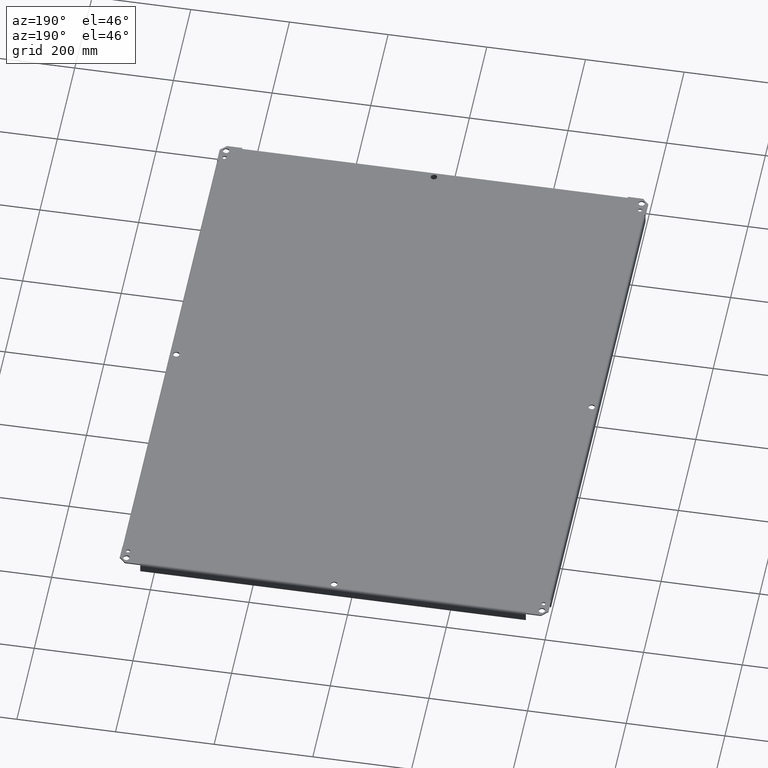
[diagram: clean part render]
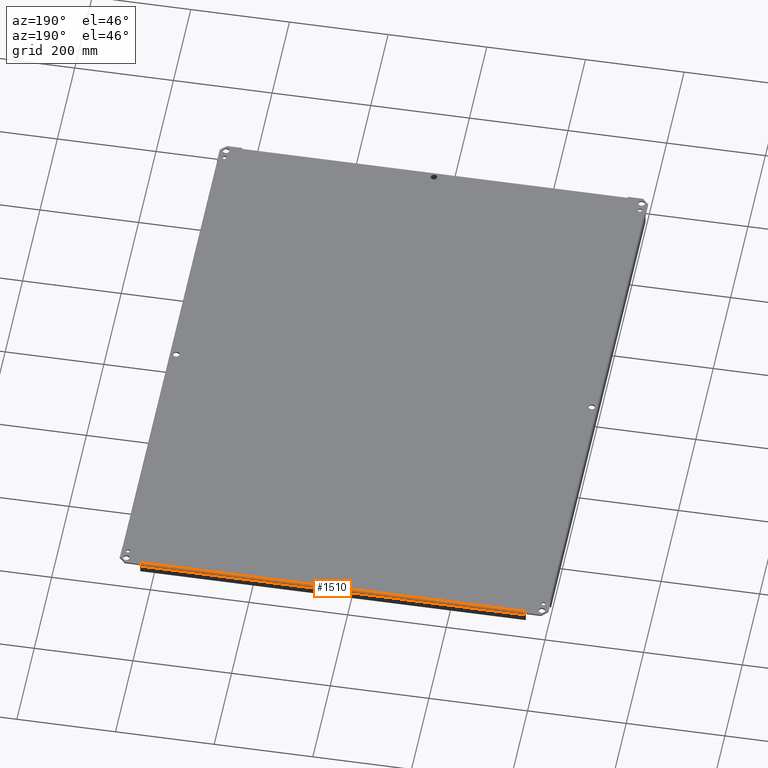
[diagram: same view with one face highlighted and labeled with its STEP entity id]
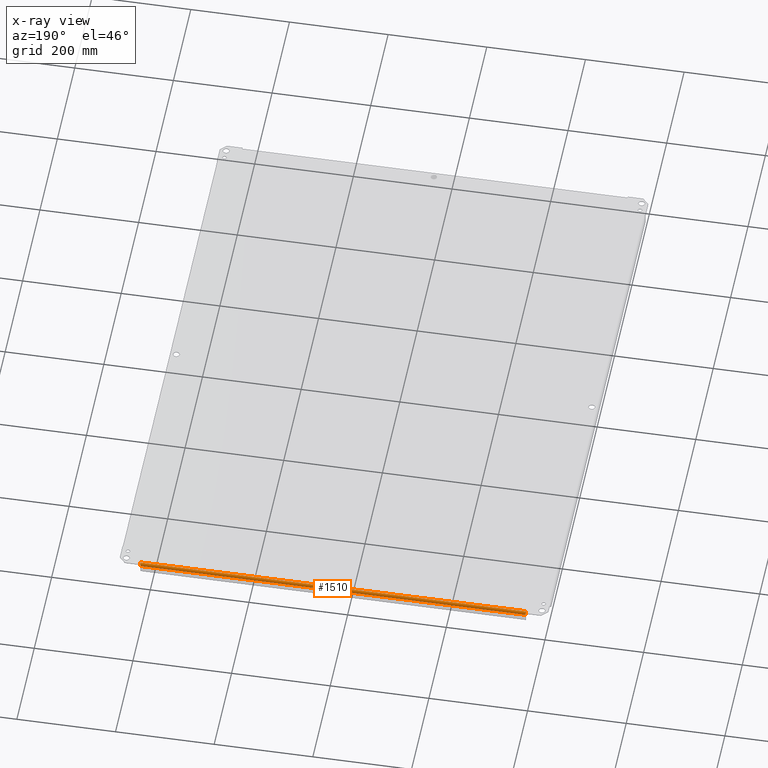
[diagram: x-ray of the same camera — body ghosted, the highlighted face saturated]
A machine part, auxiliary view. The second image highlights one B-rep face of the part: STEP entity #1510.
The next image is the same camera in x-ray: the body ghosted, the highlighted face saturated — about 0% of this face is hidden behind the body in this view.
In plain terms, the highlighted cylindrical surface (edge-blend (fillet) strip) has radius 4.7625 mm, axis along (-1, -0, 0).
Its self-contained STEP definition (entity closure, byte-faithful):
#1075=CARTESIAN_POINT('',(32.481999999999992,46.012500000000017,0.09375));
#1076=VERTEX_POINT('',#1075);
#1083=CARTESIAN_POINT('',(1.717999999999987,46.01250000000001,0.09375));
#1084=VERTEX_POINT('',#1083);
#1085=CARTESIAN_POINT('',(32.481999999999992,46.012500000000017,0.09375));
#1086=DIRECTION('',(-1.0,0.0,0.0));
#1087=VECTOR('',#1086,30.764000000000006);
#1088=LINE('',#1085,#1087);
#1089=EDGE_CURVE('',#1076,#1084,#1088,.T.);
#1324=CARTESIAN_POINT('',(32.481999999999992,46.200000000000003,-0.093750000000444));
#1325=VERTEX_POINT('',#1324);
#1326=CARTESIAN_POINT('',(1.717999999999989,46.199999999999996,-0.093750000000012));
#1327=VERTEX_POINT('',#1326);
#1328=CARTESIAN_POINT('',(32.481999999999992,46.200000000000422,-0.093750000000441));
#1329=DIRECTION('',(-1.0,0.0,0.0));
#1330=VECTOR('',#1329,30.764000000000003);
#1331=LINE('',#1328,#1330);
#1332=EDGE_CURVE('',#1325,#1327,#1331,.T.);
#1381=CARTESIAN_POINT('',(32.481999999999992,46.012500000000003,-0.09375));
#1382=DIRECTION('',(-1.0,0.0,0.0));
#1383=DIRECTION('',(0.0,0.0,1.0));
#1384=AXIS2_PLACEMENT_3D('',#1381,#1382,#1383);
#1385=CIRCLE('',#1384,0.1875);
#1386=EDGE_CURVE('',#1076,#1325,#1385,.T.);
#1477=CARTESIAN_POINT('',(1.717999999999989,46.012500000000003,-0.09375));
#1478=DIRECTION('',(-1.0,0.0,0.0));
#1479=DIRECTION('',(0.0,0.0,1.0));
#1480=AXIS2_PLACEMENT_3D('',#1477,#1478,#1479);
#1481=CIRCLE('',#1480,0.1875);
#1482=EDGE_CURVE('',#1084,#1327,#1481,.T.);
#1499=CARTESIAN_POINT('',(17.099999999999991,46.012500000000003,-0.09375));
#1500=DIRECTION('',(-1.0,-1.818627E-016,0.0));
#1501=DIRECTION('',(0.0,0.0,1.0));
#1502=AXIS2_PLACEMENT_3D('',#1499,#1500,#1501);
#1503=CYLINDRICAL_SURFACE('',#1502,0.1875);
#1504=ORIENTED_EDGE('',*,*,#1332,.T.);
#1505=ORIENTED_EDGE('',*,*,#1482,.F.);
#1506=ORIENTED_EDGE('',*,*,#1089,.F.);
#1507=ORIENTED_EDGE('',*,*,#1386,.T.);
#1508=EDGE_LOOP('',(#1504,#1505,#1506,#1507));
#1509=FACE_OUTER_BOUND('',#1508,.T.);
#1510=ADVANCED_FACE('',(#1509),#1503,.T.);